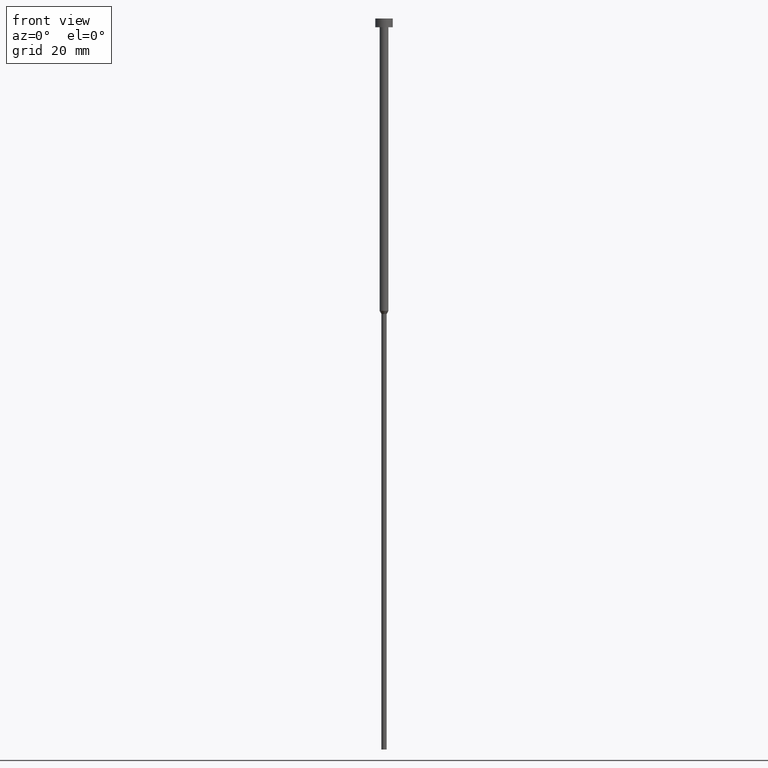
[diagram: clean part render]
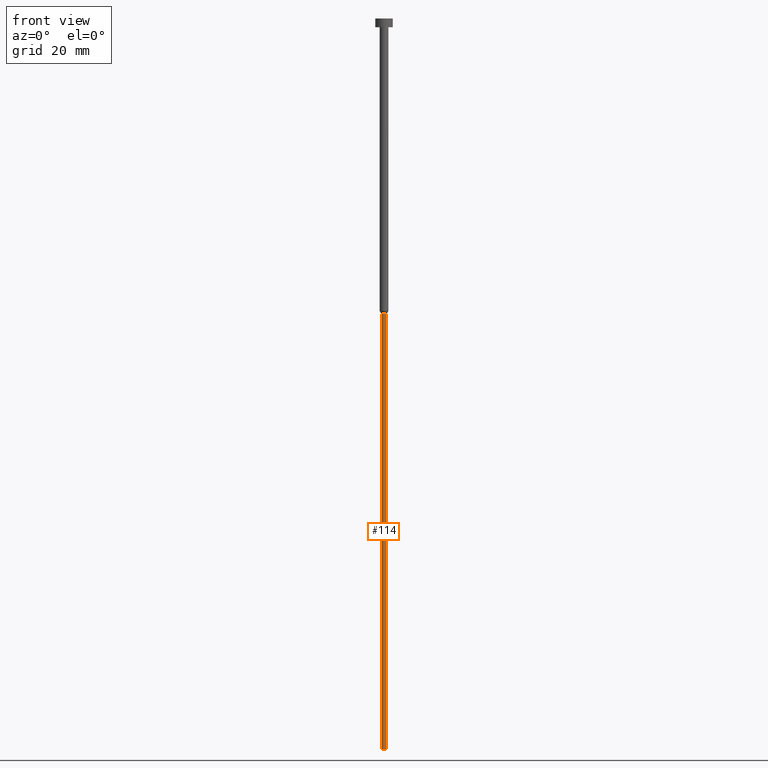
[diagram: same view with one face highlighted and labeled with its STEP entity id]
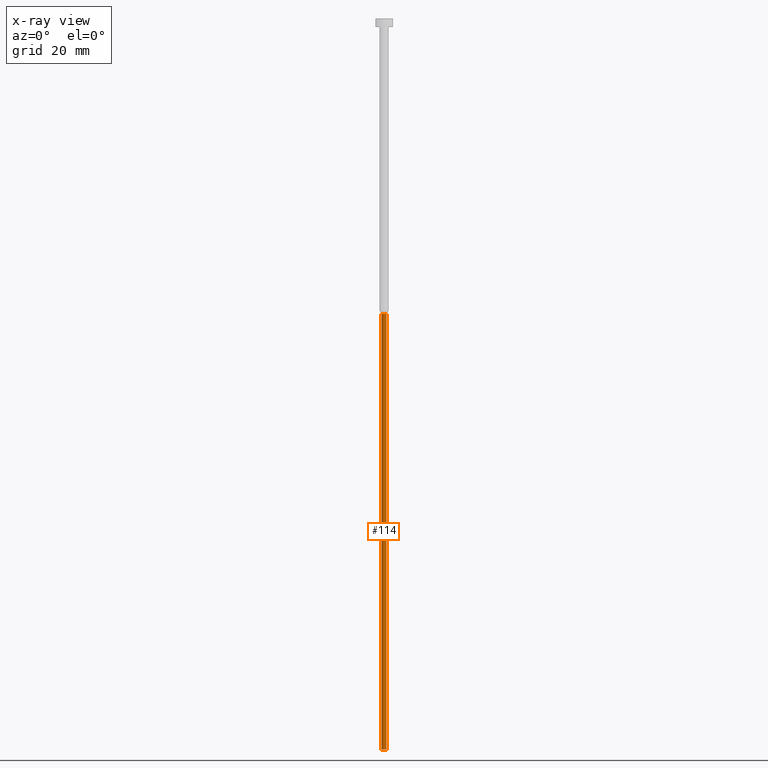
[diagram: x-ray of the same camera — body ghosted, the highlighted face saturated]
A machine part, front view. The second image highlights one B-rep face of the part: STEP entity #114.
The next image is the same camera in x-ray: the body ghosted, the highlighted face saturated — about 0% of this face is hidden behind the body in this view.
In plain terms, the highlighted cylindrical surface (edge-blend (fillet) strip) has radius 0.9 mm, axis along (-0, -0, 1).
Its self-contained STEP definition (entity closure, byte-faithful):
#8 = VERTEX_POINT ( 'NONE', #147 ) ;
#14 = ORIENTED_EDGE ( 'NONE', *, *, #220, .F. ) ;
#15 = VECTOR ( 'NONE', #135, 1000.000000000000000 ) ;
#20 = DIRECTION ( 'NONE',  ( -0.000000000000000000, -0.000000000000000000, 1.000000000000000000 ) ) ;
#35 = CARTESIAN_POINT ( 'NONE',  ( -0.9000000000000000222, 1.102182119232617788E-16, 0.000000000000000000 ) ) ;
#43 = CYLINDRICAL_SURFACE ( 'NONE', #127, 0.9000000000000000222 ) ;
#50 = DIRECTION ( 'NONE',  ( 1.000000000000000000, 0.000000000000000000, 0.000000000000000000 ) ) ;
#53 = CARTESIAN_POINT ( 'NONE',  ( 0.9000000000000000222, 0.000000000000000000, -101.0392304845413349 ) ) ;
#56 = CARTESIAN_POINT ( 'NONE',  ( 0.000000000000000000, 0.000000000000000000, -250.0000000000000000 ) ) ;
#61 = AXIS2_PLACEMENT_3D ( 'NONE', #71, #308, #190 ) ;
#70 = CARTESIAN_POINT ( 'NONE',  ( 0.9000000000000000222, 0.000000000000000000, -250.0000000000000000 ) ) ;
#71 = CARTESIAN_POINT ( 'NONE',  ( 0.000000000000000000, 0.000000000000000000, -101.0392304845413349 ) ) ;
#81 = EDGE_CURVE ( 'NONE', #8, #110, #341, .T. ) ;
#96 = EDGE_LOOP ( 'NONE', ( #14, #161, #219, #346 ) ) ;
#110 = VERTEX_POINT ( 'NONE', #70 ) ;
#114 = ADVANCED_FACE ( 'NONE', ( #353 ), #43, .T. ) ;
#127 = AXIS2_PLACEMENT_3D ( 'NONE', #229, #231, #50 ) ;
#133 = CARTESIAN_POINT ( 'NONE',  ( -0.9000000000000000222, 1.102182119232617788E-16, -101.0392304845413349 ) ) ;
#135 = DIRECTION ( 'NONE',  ( -0.000000000000000000, -0.000000000000000000, 1.000000000000000000 ) ) ;
#144 = VERTEX_POINT ( 'NONE', #53 ) ;
#147 = CARTESIAN_POINT ( 'NONE',  ( -0.9000000000000000222, 1.102182119232617788E-16, -250.0000000000000000 ) ) ;
#161 = ORIENTED_EDGE ( 'NONE', *, *, #81, .T. ) ;
#167 = LINE ( 'NONE', #172, #206 ) ;
#172 = CARTESIAN_POINT ( 'NONE',  ( 0.9000000000000000222, 0.000000000000000000, 0.000000000000000000 ) ) ;
#190 = DIRECTION ( 'NONE',  ( 1.000000000000000000, 0.000000000000000000, 0.000000000000000000 ) ) ;
#197 = DIRECTION ( 'NONE',  ( -0.000000000000000000, -0.000000000000000000, 1.000000000000000000 ) ) ;
#204 = AXIS2_PLACEMENT_3D ( 'NONE', #56, #20, #235 ) ;
#206 = VECTOR ( 'NONE', #197, 1000.000000000000000 ) ;
#219 = ORIENTED_EDGE ( 'NONE', *, *, #306, .T. ) ;
#220 = EDGE_CURVE ( 'NONE', #8, #291, #279, .T. ) ;
#229 = CARTESIAN_POINT ( 'NONE',  ( 0.000000000000000000, 0.000000000000000000, 0.000000000000000000 ) ) ;
#231 = DIRECTION ( 'NONE',  ( -0.000000000000000000, -0.000000000000000000, 1.000000000000000000 ) ) ;
#235 = DIRECTION ( 'NONE',  ( 1.000000000000000000, 0.000000000000000000, 0.000000000000000000 ) ) ;
#279 = LINE ( 'NONE', #35, #15 ) ;
#291 = VERTEX_POINT ( 'NONE', #133 ) ;
#306 = EDGE_CURVE ( 'NONE', #110, #144, #167, .T. ) ;
#308 = DIRECTION ( 'NONE',  ( -0.000000000000000000, -0.000000000000000000, 1.000000000000000000 ) ) ;
#312 = CIRCLE ( 'NONE', #61, 0.9000000000000000222 ) ;
#329 = EDGE_CURVE ( 'NONE', #291, #144, #312, .T. ) ;
#341 = CIRCLE ( 'NONE', #204, 0.9000000000000000222 ) ;
#346 = ORIENTED_EDGE ( 'NONE', *, *, #329, .F. ) ;
#353 = FACE_OUTER_BOUND ( 'NONE', #96, .T. ) ;